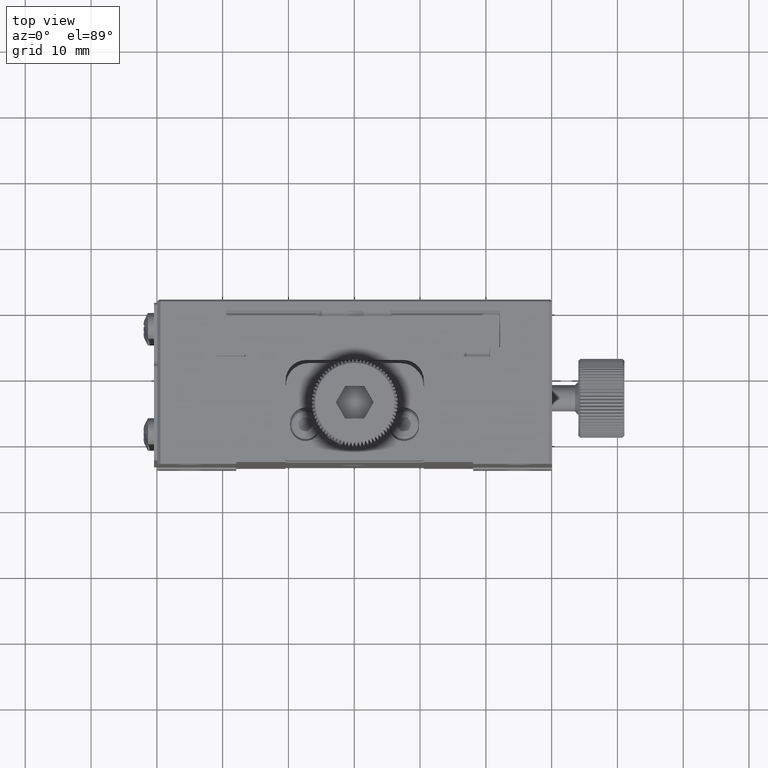
[diagram: clean part render]
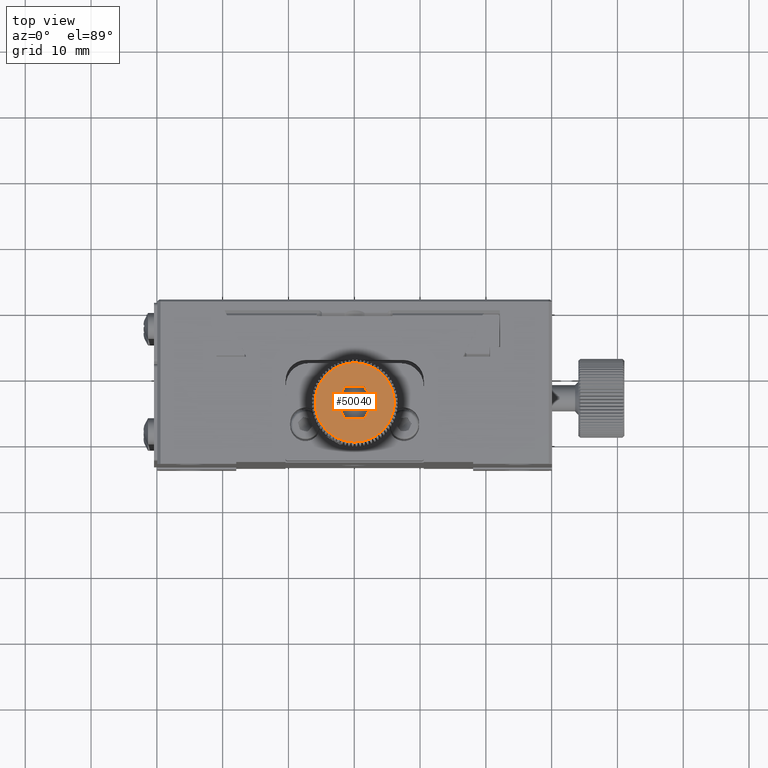
[diagram: same view with one face highlighted and labeled with its STEP entity id]
A machine part, top view. The second image highlights one B-rep face of the part: STEP entity #50040.
In plain terms, the highlighted planar face has unit normal (-0, 0, -1).
Its self-contained STEP definition (entity closure, byte-faithful):
#22 = LINE ( 'NONE', #41900, #59853 ) ;
#212 = DIRECTION ( 'NONE',  ( -1.000000000000000000, 0.000000000000000000, 2.312964634625415683E-15 ) ) ;
#405 = CIRCLE ( 'NONE', #58716, 6.000000000026789237 ) ;
#583 = EDGE_CURVE ( 'NONE', #21485, #43441, #62082, .T. ) ;
#595 = ORIENTED_EDGE ( 'NONE', *, *, #583, .F. ) ;
#676 = EDGE_CURVE ( 'NONE', #65766, #7494, #52471, .T. ) ;
#728 = EDGE_CURVE ( 'NONE', #15925, #60457, #64535, .T. ) ;
#777 = EDGE_CURVE ( 'NONE', #56016, #11095, #37280, .T. ) ;
#859 = DIRECTION ( 'NONE',  ( -0.4999999999999972244, 0.8660254037844402619, 0.000000000000000000 ) ) ;
#1012 = ORIENTED_EDGE ( 'NONE', *, *, #29845, .F. ) ;
#1018 = EDGE_CURVE ( 'NONE', #12704, #76382, #62144, .T. ) ;
#1096 = CARTESIAN_POINT ( 'NONE',  ( 51.12949306994651266, 39.43299562105167411, 100.1790466770447381 ) ) ;
#1148 = EDGE_CURVE ( 'NONE', #11564, #56016, #26193, .T. ) ;
#1254 = CARTESIAN_POINT ( 'NONE',  ( 47.17140035520171182, 45.33657315266978571, 100.1790466770445249 ) ) ;
#1296 = ORIENTED_EDGE ( 'NONE', *, *, #20802, .F. ) ;
#1468 = DIRECTION ( 'NONE',  ( -1.000000000000000000, 0.000000000000000000, 2.312964634625415683E-15 ) ) ;
#1525 = CIRCLE ( 'NONE', #73395, 6.000000000026789237 ) ;
#1552 = CIRCLE ( 'NONE', #46184, 6.000000000026789237 ) ;
#1796 = EDGE_CURVE ( 'NONE', #31157, #61107, #59602, .T. ) ;
#1817 = CARTESIAN_POINT ( 'NONE',  ( 50.05815170114983914, 45.33657315266978571, 100.1790466769989933 ) ) ;
#2007 = EDGE_CURVE ( 'NONE', #43064, #50114, #36058, .T. ) ;
#2014 = CARTESIAN_POINT ( 'NONE',  ( 45.72138251816615195, 41.19019725873006621, 100.1790466770447665 ) ) ;
#2046 = ORIENTED_EDGE ( 'NONE', *, *, #27440, .F. ) ;
#2068 = DIRECTION ( 'NONE',  ( -3.307264944117246031E-15, 6.767819170658269070E-16, -1.000000000000000000 ) ) ;
#2212 = DIRECTION ( 'NONE',  ( -1.000000000000000000, 0.000000000000000000, 4.848925578529680511E-15 ) ) ;
#2990 = EDGE_CURVE ( 'NONE', #68426, #7824, #60926, .T. ) ;
#3067 = ORIENTED_EDGE ( 'NONE', *, *, #1018, .F. ) ;
#3118 = CARTESIAN_POINT ( 'NONE',  ( 46.11051934549399789, 40.81814435662793272, 100.1790466770447665 ) ) ;
#3187 = AXIS2_PLACEMENT_3D ( 'NONE', #18080, #35909, #35544 ) ;
#3247 = CIRCLE ( 'NONE', #59010, 6.000000000026789237 ) ;
#3291 = CARTESIAN_POINT ( 'NONE',  ( 45.05071217879967094, 48.64195504139713222, 100.1790466770447665 ) ) ;
#3477 = DIRECTION ( 'NONE',  ( -3.307264944117246031E-15, 6.767819170658269070E-16, -1.000000000000000000 ) ) ;
#3480 = CARTESIAN_POINT ( 'NONE',  ( 50.05815170114983914, 45.33657315266978571, 100.1790466769989933 ) ) ;
#3719 = DIRECTION ( 'NONE',  ( 0.5000000000000047740, 0.8660254037844359321, 0.000000000000000000 ) ) ;
#3742 = VECTOR ( 'NONE', #2212, 1000.000000000000000 ) ;
#3940 = AXIS2_PLACEMENT_3D ( 'NONE', #51632, #22130, #45795 ) ;
#3992 = CARTESIAN_POINT ( 'NONE',  ( 55.06559122349997182, 48.64195504139722459, 100.1790466770447097 ) ) ;
#4106 = AXIS2_PLACEMENT_3D ( 'NONE', #19170, #18779, #13347 ) ;
#4222 = AXIS2_PLACEMENT_3D ( 'NONE', #36054, #7316, #65528 ) ;
#4228 = AXIS2_PLACEMENT_3D ( 'NONE', #9207, #73592, #32865 ) ;
#4465 = VERTEX_POINT ( 'NONE', #13911 ) ;
#4515 = CARTESIAN_POINT ( 'NONE',  ( 46.98075603670066869, 50.48726591430398969, 100.1790466770447523 ) ) ;
#4674 = DIRECTION ( 'NONE',  ( -3.307264944117246031E-15, 6.767819170658269070E-16, -1.000000000000000000 ) ) ;
#4966 = DIRECTION ( 'NONE',  ( -1.000000000000000000, 0.000000000000000000, 2.312964634625415683E-15 ) ) ;
#5062 = VERTEX_POINT ( 'NONE', #22465 ) ;
#5194 = AXIS2_PLACEMENT_3D ( 'NONE', #57962, #40873, #29228 ) ;
#5296 = DIRECTION ( 'NONE',  ( -1.000000000000000000, 0.000000000000000000, 2.312964634625415683E-15 ) ) ;
#5320 = VERTEX_POINT ( 'NONE', #64271 ) ;
#5430 = VERTEX_POINT ( 'NONE', #18105 ) ;
#5526 = CARTESIAN_POINT ( 'NONE',  ( 50.05815170114983914, 45.33657315266978571, 100.1790466769989933 ) ) ;
#5999 = CARTESIAN_POINT ( 'NONE',  ( 50.05815170114983914, 45.33657315266978571, 100.1790466769989933 ) ) ;
#6015 = CARTESIAN_POINT ( 'NONE',  ( 50.05815170114983914, 45.33657315266978571, 100.1790466769989933 ) ) ;
#6033 = CARTESIAN_POINT ( 'NONE',  ( 50.05815170114983914, 45.33657315266978571, 100.1790466769989933 ) ) ;
#6057 = DIRECTION ( 'NONE',  ( -3.307264944117246031E-15, 6.767819170658269070E-16, -1.000000000000000000 ) ) ;
#6165 = ORIENTED_EDGE ( 'NONE', *, *, #56261, .F. ) ;
#6287 = ORIENTED_EDGE ( 'NONE', *, *, #72998, .F. ) ;
#6309 = AXIS2_PLACEMENT_3D ( 'NONE', #39020, #20034, #32037 ) ;
#6446 = DIRECTION ( 'NONE',  ( -1.000000000000000000, 0.000000000000000000, 2.312964634625415683E-15 ) ) ;
#6472 = VERTEX_POINT ( 'NONE', #34803 ) ;
#6474 = CARTESIAN_POINT ( 'NONE',  ( 50.05815170114983914, 45.33657315266978571, 100.1790466769989933 ) ) ;
#6499 = ORIENTED_EDGE ( 'NONE', *, *, #73320, .F. ) ;
#6547 = CIRCLE ( 'NONE', #56064, 6.000000000026789237 ) ;
#6573 = CARTESIAN_POINT ( 'NONE',  ( 48.46193062774272420, 39.55279598846884426, 100.1790466770447523 ) ) ;
#6614 = CARTESIAN_POINT ( 'NONE',  ( 54.74914059597891480, 49.07751196383895831, 100.1790466770447097 ) ) ;
#7096 = CIRCLE ( 'NONE', #50477, 6.000000000026789237 ) ;
#7241 = CIRCLE ( 'NONE', #50627, 6.000000000026789237 ) ;
#7253 = DIRECTION ( 'NONE',  ( -1.000000000000000000, 0.000000000000000000, 2.312964634625415683E-15 ) ) ;
#7264 = DIRECTION ( 'NONE',  ( -1.000000000000000000, 0.000000000000000000, 2.312964634625415683E-15 ) ) ;
#7316 = DIRECTION ( 'NONE',  ( -3.307264944117246031E-15, 6.767819170658269070E-16, -1.000000000000000000 ) ) ;
#7494 = VERTEX_POINT ( 'NONE', #45403 ) ;
#7759 = DIRECTION ( 'NONE',  ( -3.307264944117246031E-15, 6.767819170658269070E-16, -1.000000000000000000 ) ) ;
#7818 = DIRECTION ( 'NONE',  ( -1.000000000000000000, 0.000000000000000000, 2.312964634625415683E-15 ) ) ;
#7824 = VERTEX_POINT ( 'NONE', #50740 ) ;
#8013 = ORIENTED_EDGE ( 'NONE', *, *, #8128, .F. ) ;
#8042 = LINE ( 'NONE', #31686, #3742 ) ;
#8088 = DIRECTION ( 'NONE',  ( -1.000000000000000000, 0.000000000000000000, 2.312964634625415683E-15 ) ) ;
#8128 = EDGE_CURVE ( 'NONE', #38372, #30064, #73991, .T. ) ;
#8451 = DIRECTION ( 'NONE',  ( -1.000000000000000000, 0.000000000000000000, 2.312964634625415683E-15 ) ) ;
#8648 = VERTEX_POINT ( 'NONE', #76451 ) ;
#8970 = CARTESIAN_POINT ( 'NONE',  ( 50.05815170114983914, 45.33657315266978571, 100.1790466769989933 ) ) ;
#8991 = CIRCLE ( 'NONE', #23814, 6.000000000026789237 ) ;
#9174 = DIRECTION ( 'NONE',  ( -1.000000000000000000, 0.000000000000000000, 2.312964634625415683E-15 ) ) ;
#9207 = CARTESIAN_POINT ( 'NONE',  ( 50.05815170114983914, 45.33657315266978571, 100.1790466769989933 ) ) ;
#9380 = DIRECTION ( 'NONE',  ( -1.000000000000000000, 0.000000000000000000, 2.312964634625415683E-15 ) ) ;
#9421 = VECTOR ( 'NONE', #49682, 1000.000000000000114 ) ;
#9615 = AXIS2_PLACEMENT_3D ( 'NONE', #35937, #6057, #58455 ) ;
#9645 = VERTEX_POINT ( 'NONE', #48933 ) ;
#9791 = EDGE_CURVE ( 'NONE', #11095, #38957, #7096, .T. ) ;
#9870 = VERTEX_POINT ( 'NONE', #20106 ) ;
#10054 = DIRECTION ( 'NONE',  ( -1.000000000000000000, 0.000000000000000000, 2.312964634625415683E-15 ) ) ;
#10056 = CARTESIAN_POINT ( 'NONE',  ( 45.36716280632072085, 49.07751196383888015, 100.1790466770447665 ) ) ;
#10063 = DIRECTION ( 'NONE',  ( -1.000000000000000000, 0.000000000000000000, 2.312964634625415683E-15 ) ) ;
#10093 = CIRCLE ( 'NONE', #29903, 6.000000000026789237 ) ;
#10478 = ORIENTED_EDGE ( 'NONE', *, *, #9791, .F. ) ;
#10501 = ORIENTED_EDGE ( 'NONE', *, *, #17215, .F. ) ;
#10624 = DIRECTION ( 'NONE',  ( -3.307264944117246031E-15, 6.767819170658269070E-16, -1.000000000000000000 ) ) ;
#10770 = EDGE_CURVE ( 'NONE', #64956, #43064, #70397, .T. ) ;
#10884 = DIRECTION ( 'NONE',  ( -3.307264944117246031E-15, 6.767819170658269070E-16, -1.000000000000000000 ) ) ;
#11095 = VERTEX_POINT ( 'NONE', #16574 ) ;
#11349 = AXIS2_PLACEMENT_3D ( 'NONE', #12422, #29878, #40749 ) ;
#11481 = AXIS2_PLACEMENT_3D ( 'NONE', #68576, #14667, #8088 ) ;
#11564 = VERTEX_POINT ( 'NONE', #25239 ) ;
#11566 = CARTESIAN_POINT ( 'NONE',  ( 50.05815170114983914, 45.33657315266978571, 100.1790466769989933 ) ) ;
#11684 = AXIS2_PLACEMENT_3D ( 'NONE', #29891, #7759, #31414 ) ;
#11875 = DIRECTION ( 'NONE',  ( -1.000000000000000000, 0.000000000000000000, 2.312964634625415683E-15 ) ) ;
#11967 = ORIENTED_EDGE ( 'NONE', *, *, #72505, .F. ) ;
#12216 = ORIENTED_EDGE ( 'NONE', *, *, #46861, .F. ) ;
#12275 = DIRECTION ( 'NONE',  ( -3.307264944117246031E-15, 6.767819170658269070E-16, -1.000000000000000000 ) ) ;
#12422 = CARTESIAN_POINT ( 'NONE',  ( 50.05815170114983914, 45.33657315266978571, 100.1790466769989933 ) ) ;
#12516 = VECTOR ( 'NONE', #859, 1000.000000000000114 ) ;
#12592 = DIRECTION ( 'NONE',  ( -1.000000000000000000, 0.000000000000000000, 2.312964634625415683E-15 ) ) ;
#12704 = VERTEX_POINT ( 'NONE', #75801 ) ;
#12705 = CARTESIAN_POINT ( 'NONE',  ( 44.35181260335345144, 47.19067511892772870, 100.1790466770447807 ) ) ;
#12887 = CARTESIAN_POINT ( 'NONE',  ( 50.05815170114983914, 45.33657315266978571, 100.1790466769989933 ) ) ;
#13015 = VERTEX_POINT ( 'NONE', #56360 ) ;
#13347 = DIRECTION ( 'NONE',  ( -1.000000000000000000, 0.000000000000000000, 2.312964634625415683E-15 ) ) ;
#13429 = CIRCLE ( 'NONE', #66699, 6.000000000026789237 ) ;
#13911 = CARTESIAN_POINT ( 'NONE',  ( 56.00385027178401032, 44.53117355776034003, 100.1790466770446955 ) ) ;
#14177 = VERTEX_POINT ( 'NONE', #71910 ) ;
#14405 = ORIENTED_EDGE ( 'NONE', *, *, #75103, .F. ) ;
#14441 = DIRECTION ( 'NONE',  ( -3.307264944117246031E-15, 6.767819170658269070E-16, -1.000000000000000000 ) ) ;
#14667 = DIRECTION ( 'NONE',  ( -3.307264944117246031E-15, 6.767819170658269070E-16, -1.000000000000000000 ) ) ;
#14679 = ORIENTED_EDGE ( 'NONE', *, *, #68816, .F. ) ;
#14784 = CARTESIAN_POINT ( 'NONE',  ( 53.58486321492036097, 50.19067511894118638, 100.1790466770447097 ) ) ;
#14790 = ORIENTED_EDGE ( 'NONE', *, *, #61432, .F. ) ;
#14811 = CARTESIAN_POINT ( 'NONE',  ( 54.00578405680578697, 40.81814435662798957, 100.1790466770447097 ) ) ;
#14936 = DIRECTION ( 'NONE',  ( -1.000000000000000000, 0.000000000000000000, 2.312964634625415683E-15 ) ) ;
#14987 = DIRECTION ( 'NONE',  ( -3.307264944117246031E-15, 6.767819170658269070E-16, -1.000000000000000000 ) ) ;
#14999 = CARTESIAN_POINT ( 'NONE',  ( 47.17140035520171182, 45.33657315266979992, 100.1790466770445107 ) ) ;
#15155 = ORIENTED_EDGE ( 'NONE', *, *, #23769, .F. ) ;
#15187 = CIRCLE ( 'NONE', #69672, 6.000000000026789237 ) ;
#15296 = CARTESIAN_POINT ( 'NONE',  ( 50.05815170114983914, 45.33657315266978571, 100.1790466769989933 ) ) ;
#15405 = CIRCLE ( 'NONE', #30282, 6.000000000026789237 ) ;
#15684 = VERTEX_POINT ( 'NONE', #75240 ) ;
#15700 = AXIS2_PLACEMENT_3D ( 'NONE', #50583, #40067, #39314 ) ;
#15726 = VERTEX_POINT ( 'NONE', #3118 ) ;
#15764 = CARTESIAN_POINT ( 'NONE',  ( 56.00385027178398190, 46.14197274757938771, 100.1790466770447097 ) ) ;
#15777 = DIRECTION ( 'NONE',  ( 0.4999999999999990563, -0.8660254037844391517, 0.000000000000000000 ) ) ;
#15925 = VERTEX_POINT ( 'NONE', #37171 ) ;
#16145 = AXIS2_PLACEMENT_3D ( 'NONE', #32355, #56026, #55272 ) ;
#16164 = CARTESIAN_POINT ( 'NONE',  ( 53.13554736559907354, 40.18588039103561727, 100.1790466770447239 ) ) ;
#16574 = CARTESIAN_POINT ( 'NONE',  ( 44.06419330187521410, 45.06738417056547519, 100.1790466770447665 ) ) ;
#16697 = VERTEX_POINT ( 'NONE', #61351 ) ;
#17045 = CARTESIAN_POINT ( 'NONE',  ( 50.05815170114983914, 45.33657315266978571, 100.1790466769989933 ) ) ;
#17181 = EDGE_CURVE ( 'NONE', #76512, #26544, #44061, .T. ) ;
#17193 = DIRECTION ( 'NONE',  ( -1.000000000000000000, 0.000000000000000000, 2.312964634625415683E-15 ) ) ;
#17215 = EDGE_CURVE ( 'NONE', #26973, #13015, #63901, .T. ) ;
#17584 = DIRECTION ( 'NONE',  ( -3.307264944117246031E-15, 6.767819170658269070E-16, -1.000000000000000000 ) ) ;
#17595 = AXIS2_PLACEMENT_3D ( 'NONE', #70922, #48039, #66258 ) ;
#17714 = DIRECTION ( 'NONE',  ( -3.307264944117246031E-15, 6.767819170658269070E-16, -1.000000000000000000 ) ) ;
#17830 = EDGE_CURVE ( 'NONE', #38957, #32340, #3247, .T. ) ;
#18080 = CARTESIAN_POINT ( 'NONE',  ( 50.05815170114983914, 45.33657315266978571, 100.1790466769989933 ) ) ;
#18105 = CARTESIAN_POINT ( 'NONE',  ( 55.57531833648320685, 42.97842296273578455, 100.1790466770446955 ) ) ;
#18139 = AXIS2_PLACEMENT_3D ( 'NONE', #15296, #10624, #51373 ) ;
#18445 = CARTESIAN_POINT ( 'NONE',  ( 50.05815170114983914, 45.33657315266978571, 100.1790466769989933 ) ) ;
#18477 = CIRCLE ( 'NONE', #46993, 6.000000000026789237 ) ;
#18569 = AXIS2_PLACEMENT_3D ( 'NONE', #66326, #53545, #35331 ) ;
#18695 = CARTESIAN_POINT ( 'NONE',  ( 52.94490304709796646, 45.33657315266977861, 100.1790466770444823 ) ) ;
#18779 = DIRECTION ( 'NONE',  ( -3.307264944117246031E-15, 6.767819170658269070E-16, -1.000000000000000000 ) ) ;
#18859 = EDGE_CURVE ( 'NONE', #60457, #71287, #7241, .T. ) ;
#18878 = CIRCLE ( 'NONE', #5194, 6.000000000026789237 ) ;
#18934 = VERTEX_POINT ( 'NONE', #72267 ) ;
#18987 = AXIS2_PLACEMENT_3D ( 'NONE', #11566, #76320, #4966 ) ;
#19166 = CIRCLE ( 'NONE', #32780, 6.000000000026789237 ) ;
#19170 = CARTESIAN_POINT ( 'NONE',  ( 50.05815170114983914, 45.33657315266978571, 100.1790466769989933 ) ) ;
#19234 = CARTESIAN_POINT ( 'NONE',  ( 46.11051934549393394, 49.85500194871162449, 100.1790466770447523 ) ) ;
#19499 = CARTESIAN_POINT ( 'NONE',  ( 50.05815170114983914, 45.33657315266978571, 100.1790466769989933 ) ) ;
#19752 = VERTEX_POINT ( 'NONE', #22359 ) ;
#20034 = DIRECTION ( 'NONE',  ( -3.307264944117246031E-15, 6.767819170658269070E-16, -1.000000000000000000 ) ) ;
#20106 = CARTESIAN_POINT ( 'NONE',  ( 55.06559122350005708, 42.03119126394247473, 100.1790466770446955 ) ) ;
#20113 = CIRCLE ( 'NONE', #22542, 6.000000000026789237 ) ;
#20180 = LINE ( 'NONE', #32188, #9421 ) ;
#20535 = ORIENTED_EDGE ( 'NONE', *, *, #28898, .F. ) ;
#20546 = DIRECTION ( 'NONE',  ( -3.307264944117246031E-15, 6.767819170658269070E-16, -1.000000000000000000 ) ) ;
#20802 = EDGE_CURVE ( 'NONE', #22639, #76512, #70656, .T. ) ;
#20946 = AXIS2_PLACEMENT_3D ( 'NONE', #5526, #52868, #7818 ) ;
#21251 = ORIENTED_EDGE ( 'NONE', *, *, #33473, .F. ) ;
#21296 = AXIS2_PLACEMENT_3D ( 'NONE', #8970, #45797, #45040 ) ;
#21301 = ORIENTED_EDGE ( 'NONE', *, *, #74473, .F. ) ;
#21388 = DIRECTION ( 'NONE',  ( -3.307264944117246031E-15, 6.767819170658269070E-16, -1.000000000000000000 ) ) ;
#21392 = CARTESIAN_POINT ( 'NONE',  ( 44.77457850998582956, 48.17978512752044651, 100.1790466770447665 ) ) ;
#21479 = CARTESIAN_POINT ( 'NONE',  ( 55.90771917426688020, 46.67169875641371135, 100.1790466770446955 ) ) ;
#21485 = VERTEX_POINT ( 'NONE', #54716 ) ;
#21785 = CARTESIAN_POINT ( 'NONE',  ( 55.57531833648313579, 47.69472334260393609, 100.1790466770447097 ) ) ;
#22130 = DIRECTION ( 'NONE',  ( -3.307264944117246031E-15, 6.767819170658269070E-16, -1.000000000000000000 ) ) ;
#22352 = DIRECTION ( 'NONE',  ( -3.307264944117246031E-15, 6.767819170658269070E-16, -1.000000000000000000 ) ) ;
#22359 = CARTESIAN_POINT ( 'NONE',  ( 47.45484926643286627, 50.74238636010843351, 100.1790466770447523 ) ) ;
#22465 = CARTESIAN_POINT ( 'NONE',  ( 54.74914059597901428, 41.59563434150074812, 100.1790466770447097 ) ) ;
#22468 = DIRECTION ( 'NONE',  ( -3.307264944117246031E-15, 6.767819170658269070E-16, -1.000000000000000000 ) ) ;
#22519 = CARTESIAN_POINT ( 'NONE',  ( 50.05815170114983914, 45.33657315266978571, 100.1790466769989933 ) ) ;
#22542 = AXIS2_PLACEMENT_3D ( 'NONE', #38266, #14987, #9174 ) ;
#22575 = EDGE_CURVE ( 'NONE', #71287, #40898, #31033, .T. ) ;
#22639 = VERTEX_POINT ( 'NONE', #28456 ) ;
#22805 = VERTEX_POINT ( 'NONE', #42396 ) ;
#22818 = DIRECTION ( 'NONE',  ( -3.307264944117246031E-15, 6.767819170658269070E-16, -1.000000000000000000 ) ) ;
#22830 = ORIENTED_EDGE ( 'NONE', *, *, #24830, .F. ) ;
#22942 = EDGE_LOOP ( 'NONE', ( #15155, #37902, #58815, #6499, #21251, #52216, #6287, #65415, #59659, #40368, #56156, #35839, #2046, #63088, #29399, #24664, #58405, #32116, #10478, #44854, #38188, #25142, #35626, #66784, #76744, #30255, #11967, #53267, #67495, #34823, #68291, #50584, #45017, #1296, #22830, #3067, #21301, #10501, #66232, #31526, #60361, #24823, #62812, #6165, #595, #48868, #24479, #20535, #54174, #40452, #42155, #33887, #34428, #8013, #72847, #14679, #31229, #34453, #1012, #24855, #35982, #72324, #14405, #60896, #56657, #47728, #44101, #65331, #50779, #49741 ) ) ;
#23230 = DIRECTION ( 'NONE',  ( -1.000000000000000000, 0.000000000000000000, 2.312964634625415683E-15 ) ) ;
#23769 = EDGE_CURVE ( 'NONE', #7824, #69441, #73001, .T. ) ;
#23814 = AXIS2_PLACEMENT_3D ( 'NONE', #54526, #12275, #6446 ) ;
#23870 = DIRECTION ( 'NONE',  ( -3.307264944117246031E-15, 6.767819170658269070E-16, -1.000000000000000000 ) ) ;
#24304 = VERTEX_POINT ( 'NONE', #39635 ) ;
#24345 = CIRCLE ( 'NONE', #52827, 6.000000000026789237 ) ;
#24479 = ORIENTED_EDGE ( 'NONE', *, *, #54065, .F. ) ;
#24664 = ORIENTED_EDGE ( 'NONE', *, *, #69789, .F. ) ;
#24696 = CIRCLE ( 'NONE', #38493, 6.000000000026789237 ) ;
#24783 = AXIS2_PLACEMENT_3D ( 'NONE', #58450, #17714, #5296 ) ;
#24809 = CIRCLE ( 'NONE', #34743, 6.000000000026789237 ) ;
#24816 = CARTESIAN_POINT ( 'NONE',  ( 44.06419330187520700, 45.60576213477405361, 100.1790466770447665 ) ) ;
#24823 = ORIENTED_EDGE ( 'NONE', *, *, #18859, .F. ) ;
#24830 = EDGE_CURVE ( 'NONE', #76382, #22639, #29738, .T. ) ;
#24855 = ORIENTED_EDGE ( 'NONE', *, *, #38440, .F. ) ;
#24992 = DIRECTION ( 'NONE',  ( -3.307264944117246031E-15, 6.767819170658269070E-16, -1.000000000000000000 ) ) ;
#25074 = VERTEX_POINT ( 'NONE', #10056 ) ;
#25092 = CIRCLE ( 'NONE', #11481, 6.000000000026789237 ) ;
#25142 = ORIENTED_EDGE ( 'NONE', *, *, #37819, .F. ) ;
#25179 = DIRECTION ( 'NONE',  ( -3.307264944117246031E-15, 6.767819170658269070E-16, -1.000000000000000000 ) ) ;
#25239 = CARTESIAN_POINT ( 'NONE',  ( 44.20858422803281229, 44.00144754892590981, 100.1790466770447665 ) ) ;
#25427 = CARTESIAN_POINT ( 'NONE',  ( 50.05815170114983914, 45.33657315266978571, 100.1790466769989933 ) ) ;
#25463 = DIRECTION ( 'NONE',  ( -3.307264944117246031E-15, 6.767819170658269070E-16, -1.000000000000000000 ) ) ;
#25479 = CARTESIAN_POINT ( 'NONE',  ( 50.05815170114983914, 45.33657315266978571, 100.1790466769989933 ) ) ;
#25545 = CIRCLE ( 'NONE', #18139, 6.000000000026789237 ) ;
#25691 = DIRECTION ( 'NONE',  ( -3.307264944117246031E-15, 6.767819170658269070E-16, -1.000000000000000000 ) ) ;
#25793 = DIRECTION ( 'NONE',  ( -1.000000000000000000, 0.000000000000000000, 2.312964634625415683E-15 ) ) ;
#25875 = CARTESIAN_POINT ( 'NONE',  ( 50.05815170114983914, 45.33657315266978571, 100.1790466769989933 ) ) ;
#25914 = VERTEX_POINT ( 'NONE', #31981 ) ;
#25984 = CARTESIAN_POINT ( 'NONE',  ( 48.46193062774266025, 51.12035031687072717, 100.1790466770447381 ) ) ;
#26059 = CARTESIAN_POINT ( 'NONE',  ( 50.05815170114983914, 45.33657315266978571, 100.1790466769989933 ) ) ;
#26193 = CIRCLE ( 'NONE', #69563, 6.000000000026789237 ) ;
#26363 = DIRECTION ( 'NONE',  ( -3.307264944117246031E-15, 6.767819170658269070E-16, -1.000000000000000000 ) ) ;
#26434 = DIRECTION ( 'NONE',  ( -1.000000000000000000, 0.000000000000000000, 2.312964634625415683E-15 ) ) ;
#26544 = VERTEX_POINT ( 'NONE', #71407 ) ;
#26618 = DIRECTION ( 'NONE',  ( -3.307264944117246031E-15, 6.767819170658269070E-16, -1.000000000000000000 ) ) ;
#26973 = VERTEX_POINT ( 'NONE', #1096 ) ;
#27129 = DIRECTION ( 'NONE',  ( -3.307264944117246031E-15, 6.767819170658269070E-16, -1.000000000000000000 ) ) ;
#27139 = CARTESIAN_POINT ( 'NONE',  ( 56.05211010042449971, 45.06738417056556045, 100.1790466770446955 ) ) ;
#27440 = EDGE_CURVE ( 'NONE', #50457, #29709, #25092, .T. ) ;
#27467 = AXIS2_PLACEMENT_3D ( 'NONE', #25479, #48772, #54561 ) ;
#27791 = EDGE_CURVE ( 'NONE', #50263, #39958, #8991, .T. ) ;
#27874 = CIRCLE ( 'NONE', #76135, 6.000000000026789237 ) ;
#28090 = DIRECTION ( 'NONE',  ( -3.307264944117246031E-15, 6.767819170658269070E-16, -1.000000000000000000 ) ) ;
#28456 = CARTESIAN_POINT ( 'NONE',  ( 48.98681033235329352, 39.43299562105165279, 100.1790466770447381 ) ) ;
#28463 = DIRECTION ( 'NONE',  ( -1.000000000000000000, 0.000000000000000000, 2.312964634625415683E-15 ) ) ;
#28512 = CARTESIAN_POINT ( 'NONE',  ( 51.50152737412388859, 42.83657315266979282, 100.1790466770444823 ) ) ;
#28748 = DIRECTION ( 'NONE',  ( -3.307264944117246031E-15, 6.767819170658269070E-16, -1.000000000000000000 ) ) ;
#28898 = EDGE_CURVE ( 'NONE', #54421, #9870, #405, .T. ) ;
#29015 = CARTESIAN_POINT ( 'NONE',  ( 50.05815170114983914, 45.33657315266978571, 100.1790466769989933 ) ) ;
#29171 = DIRECTION ( 'NONE',  ( -1.000000000000000000, 0.000000000000000000, 2.312964634625415683E-15 ) ) ;
#29194 = DIRECTION ( 'NONE',  ( -3.307264944117246031E-15, 6.767819170658269070E-16, -1.000000000000000000 ) ) ;
#29228 = DIRECTION ( 'NONE',  ( -1.000000000000000000, 0.000000000000000000, 2.312964634625415683E-15 ) ) ;
#29315 = EDGE_CURVE ( 'NONE', #19752, #25914, #37674, .T. ) ;
#29399 = ORIENTED_EDGE ( 'NONE', *, *, #46058, .F. ) ;
#29709 = VERTEX_POINT ( 'NONE', #3291 ) ;
#29738 = CIRCLE ( 'NONE', #16145, 6.000000000026789237 ) ;
#29822 = DIRECTION ( 'NONE',  ( -3.307264944117246031E-15, 6.767819170658269070E-16, -1.000000000000000000 ) ) ;
#29828 = ORIENTED_EDGE ( 'NONE', *, *, #676, .F. ) ;
#29845 = EDGE_CURVE ( 'NONE', #49703, #64956, #19166, .T. ) ;
#29878 = DIRECTION ( 'NONE',  ( -3.307264944117246031E-15, 6.767819170658269070E-16, -1.000000000000000000 ) ) ;
#29891 = CARTESIAN_POINT ( 'NONE',  ( 50.05815170114983914, 45.33657315266978571, 100.1790466769989933 ) ) ;
#29903 = AXIS2_PLACEMENT_3D ( 'NONE', #73678, #20546, #68245 ) ;
#30007 = EDGE_CURVE ( 'NONE', #4465, #6472, #73697, .T. ) ;
#30064 = VERTEX_POINT ( 'NONE', #27139 ) ;
#30255 = ORIENTED_EDGE ( 'NONE', *, *, #60998, .F. ) ;
#30282 = AXIS2_PLACEMENT_3D ( 'NONE', #49634, #25179, #43405 ) ;
#30541 = DIRECTION ( 'NONE',  ( -3.307264944117246031E-15, 6.767819170658269070E-16, -1.000000000000000000 ) ) ;
#30949 = CIRCLE ( 'NONE', #18569, 6.000000000026789237 ) ;
#31033 = CIRCLE ( 'NONE', #74394, 6.000000000026789237 ) ;
#31059 = AXIS2_PLACEMENT_3D ( 'NONE', #71811, #53232, #47413 ) ;
#31157 = VERTEX_POINT ( 'NONE', #68751 ) ;
#31227 = DIRECTION ( 'NONE',  ( -1.000000000000000000, 0.000000000000000000, 2.312964634625415683E-15 ) ) ;
#31229 = ORIENTED_EDGE ( 'NONE', *, *, #2007, .F. ) ;
#31342 = EDGE_CURVE ( 'NONE', #8648, #38570, #20180, .T. ) ;
#31414 = DIRECTION ( 'NONE',  ( -1.000000000000000000, 0.000000000000000000, 2.312964634625415683E-15 ) ) ;
#31526 = ORIENTED_EDGE ( 'NONE', *, *, #59514, .F. ) ;
#31557 = CIRCLE ( 'NONE', #42761, 6.000000000026789237 ) ;
#31686 = CARTESIAN_POINT ( 'NONE',  ( 50.05815170114983204, 47.83657315266977861, 100.1790466770444965 ) ) ;
#31790 = CIRCLE ( 'NONE', #56605, 6.000000000026789237 ) ;
#31981 = CARTESIAN_POINT ( 'NONE',  ( 47.94990275665238499, 50.95398237653327556, 100.1790466770447523 ) ) ;
#32037 = DIRECTION ( 'NONE',  ( -1.000000000000000000, 0.000000000000000000, 2.312964634625415683E-15 ) ) ;
#32116 = ORIENTED_EDGE ( 'NONE', *, *, #17830, .F. ) ;
#32188 = CARTESIAN_POINT ( 'NONE',  ( 48.61477602817578969, 47.83657315266979282, 100.1790466770445107 ) ) ;
#32232 = CARTESIAN_POINT ( 'NONE',  ( 49.52031584772689854, 39.36072738867166976, 100.1790466770447523 ) ) ;
#32340 = VERTEX_POINT ( 'NONE', #62655 ) ;
#32355 = CARTESIAN_POINT ( 'NONE',  ( 50.05815170114983914, 45.33657315266978571, 100.1790466769989933 ) ) ;
#32389 = AXIS2_PLACEMENT_3D ( 'NONE', #70715, #17584, #52888 ) ;
#32608 = VERTEX_POINT ( 'NONE', #33725 ) ;
#32780 = AXIS2_PLACEMENT_3D ( 'NONE', #66357, #54315, #53955 ) ;
#32865 = DIRECTION ( 'NONE',  ( -1.000000000000000000, 0.000000000000000000, 2.312964634625415683E-15 ) ) ;
#32956 = CARTESIAN_POINT ( 'NONE',  ( 50.05815170114983914, 45.33657315266978571, 100.1790466769989933 ) ) ;
#33409 = CIRCLE ( 'NONE', #61877, 6.000000000026789237 ) ;
#33473 = EDGE_CURVE ( 'NONE', #25914, #40245, #24345, .T. ) ;
#33664 = VERTEX_POINT ( 'NONE', #36507 ) ;
#33725 = CARTESIAN_POINT ( 'NONE',  ( 44.54098506581650696, 47.69472334260385082, 100.1790466770447665 ) ) ;
#33887 = ORIENTED_EDGE ( 'NONE', *, *, #30007, .F. ) ;
#34428 = ORIENTED_EDGE ( 'NONE', *, *, #68914, .F. ) ;
#34453 = ORIENTED_EDGE ( 'NONE', *, *, #10770, .F. ) ;
#34540 = AXIS2_PLACEMENT_3D ( 'NONE', #61454, #43984, #43596 ) ;
#34743 = AXIS2_PLACEMENT_3D ( 'NONE', #6474, #42555, #65450 ) ;
#34803 = CARTESIAN_POINT ( 'NONE',  ( 55.90771917426690862, 44.00144754892601640, 100.1790466770447097 ) ) ;
#34812 = CIRCLE ( 'NONE', #71942, 6.000000000026789237 ) ;
#34823 = ORIENTED_EDGE ( 'NONE', *, *, #69103, .F. ) ;
#35065 = CIRCLE ( 'NONE', #66007, 6.000000000026789237 ) ;
#35166 = AXIS2_PLACEMENT_3D ( 'NONE', #26059, #25691, #48995 ) ;
#35331 = DIRECTION ( 'NONE',  ( -1.000000000000000000, 0.000000000000000000, 2.312964634625415683E-15 ) ) ;
#35524 = CARTESIAN_POINT ( 'NONE',  ( 50.05815170114983914, 45.33657315266978571, 100.1790466769989933 ) ) ;
#35544 = DIRECTION ( 'NONE',  ( -1.000000000000000000, 0.000000000000000000, 2.312964634625415683E-15 ) ) ;
#35626 = ORIENTED_EDGE ( 'NONE', *, *, #71601, .F. ) ;
#35839 = ORIENTED_EDGE ( 'NONE', *, *, #35954, .F. ) ;
#35909 = DIRECTION ( 'NONE',  ( -3.307264944117246031E-15, 6.767819170658269070E-16, -1.000000000000000000 ) ) ;
#35937 = CARTESIAN_POINT ( 'NONE',  ( 50.05815170114983914, 45.33657315266978571, 100.1790466769989933 ) ) ;
#35954 = EDGE_CURVE ( 'NONE', #29709, #25074, #59976, .T. ) ;
#35982 = ORIENTED_EDGE ( 'NONE', *, *, #43170, .F. ) ;
#36054 = CARTESIAN_POINT ( 'NONE',  ( 50.05815170114983914, 45.33657315266978571, 100.1790466769989933 ) ) ;
#36058 = CIRCLE ( 'NONE', #73210, 6.000000000026789237 ) ;
#36092 = EDGE_CURVE ( 'NONE', #5320, #72118, #53824, .T. ) ;
#36507 = CARTESIAN_POINT ( 'NONE',  ( 46.53144018737930310, 40.48247118639842057, 100.1790466770447523 ) ) ;
#36684 = CARTESIAN_POINT ( 'NONE',  ( 50.05815170114983914, 45.33657315266978571, 100.1790466769989933 ) ) ;
#36766 = DIRECTION ( 'NONE',  ( -3.307264944117246031E-15, 6.767819170658269070E-16, -1.000000000000000000 ) ) ;
#36925 = DIRECTION ( 'NONE',  ( -1.000000000000000000, 0.000000000000000000, 2.312964634625415683E-15 ) ) ;
#36949 = AXIS2_PLACEMENT_3D ( 'NONE', #17045, #40680, #23230 ) ;
#37171 = CARTESIAN_POINT ( 'NONE',  ( 53.58486321492048177, 40.48247118639848452, 100.1790466770447097 ) ) ;
#37280 = CIRCLE ( 'NONE', #57145, 6.000000000026789237 ) ;
#37567 = CIRCLE ( 'NONE', #4106, 6.000000000026789237 ) ;
#37674 = CIRCLE ( 'NONE', #4228, 6.000000000026789237 ) ;
#37695 = EDGE_CURVE ( 'NONE', #49614, #38372, #66276, .T. ) ;
#37819 = EDGE_CURVE ( 'NONE', #18934, #11564, #63796, .T. ) ;
#37902 = ORIENTED_EDGE ( 'NONE', *, *, #2990, .F. ) ;
#37923 = CARTESIAN_POINT ( 'NONE',  ( 50.05815170114983914, 45.33657315266978571, 100.1790466769989933 ) ) ;
#38188 = ORIENTED_EDGE ( 'NONE', *, *, #1148, .F. ) ;
#38261 = CARTESIAN_POINT ( 'NONE',  ( 50.05815170114983914, 45.33657315266978571, 100.1790466769989933 ) ) ;
#38266 = CARTESIAN_POINT ( 'NONE',  ( 50.05815170114983914, 45.33657315266978571, 100.1790466769989933 ) ) ;
#38372 = VERTEX_POINT ( 'NONE', #69965 ) ;
#38440 = EDGE_CURVE ( 'NONE', #68303, #49703, #55930, .T. ) ;
#38493 = AXIS2_PLACEMENT_3D ( 'NONE', #38261, #26618, #74301 ) ;
#38570 = VERTEX_POINT ( 'NONE', #1254 ) ;
#38810 = CIRCLE ( 'NONE', #40018, 6.000000000026789237 ) ;
#38823 = EDGE_CURVE ( 'NONE', #24304, #5430, #44801, .T. ) ;
#38957 = VERTEX_POINT ( 'NONE', #24816 ) ;
#39020 = CARTESIAN_POINT ( 'NONE',  ( 50.05815170114983914, 45.33657315266978571, 100.1790466769989933 ) ) ;
#39217 = DIRECTION ( 'NONE',  ( -1.000000000000000000, 0.000000000000000000, 2.312964634625415683E-15 ) ) ;
#39314 = DIRECTION ( 'NONE',  ( -1.000000000000000000, 0.000000000000000000, 4.848925578529680511E-15 ) ) ;
#39348 = DIRECTION ( 'NONE',  ( -3.307264944117246031E-15, 6.767819170658269070E-16, -1.000000000000000000 ) ) ;
#39531 = CARTESIAN_POINT ( 'NONE',  ( 50.05815170114983914, 45.33657315266978571, 100.1790466769989933 ) ) ;
#39585 = CARTESIAN_POINT ( 'NONE',  ( 50.05815170114983914, 45.33657315266978571, 100.1790466769989933 ) ) ;
#39635 = CARTESIAN_POINT ( 'NONE',  ( 55.76449079894626237, 43.48247118641189246, 100.1790466770447097 ) ) ;
#39695 = CARTESIAN_POINT ( 'NONE',  ( 44.11245313051569639, 44.53117355776022634, 100.1790466770447807 ) ) ;
#39893 = CIRCLE ( 'NONE', #21296, 6.000000000026789237 ) ;
#39958 = VERTEX_POINT ( 'NONE', #6614 ) ;
#40018 = AXIS2_PLACEMENT_3D ( 'NONE', #40869, #28090, #28463 ) ;
#40050 = VERTEX_POINT ( 'NONE', #65213 ) ;
#40067 = DIRECTION ( 'NONE',  ( -4.848925578529680511E-15, 2.471786900593381611E-16, -1.000000000000000000 ) ) ;
#40244 = AXIS2_PLACEMENT_3D ( 'NONE', #40762, #28748, #59008 ) ;
#40245 = VERTEX_POINT ( 'NONE', #25984 ) ;
#40249 = AXIS2_PLACEMENT_3D ( 'NONE', #55856, #26363, #50053 ) ;
#40368 = ORIENTED_EDGE ( 'NONE', *, *, #56898, .F. ) ;
#40452 = ORIENTED_EDGE ( 'NONE', *, *, #38823, .F. ) ;
#40680 = DIRECTION ( 'NONE',  ( -3.307264944117246031E-15, 6.767819170658269070E-16, -1.000000000000000000 ) ) ;
#40742 = DIRECTION ( 'NONE',  ( -3.307264944117246031E-15, 6.767819170658269070E-16, -1.000000000000000000 ) ) ;
#40749 = DIRECTION ( 'NONE',  ( -1.000000000000000000, 0.000000000000000000, 2.312964634625415683E-15 ) ) ;
#40762 = CARTESIAN_POINT ( 'NONE',  ( 50.05815170114983914, 45.33657315266978571, 100.1790466769989933 ) ) ;
#40811 = AXIS2_PLACEMENT_3D ( 'NONE', #5999, #46761, #63849 ) ;
#40869 = CARTESIAN_POINT ( 'NONE',  ( 50.05815170114983914, 45.33657315266978571, 100.1790466769989933 ) ) ;
#40873 = DIRECTION ( 'NONE',  ( -3.307264944117246031E-15, 6.767819170658269070E-16, -1.000000000000000000 ) ) ;
#40898 = VERTEX_POINT ( 'NONE', #64648 ) ;
#41237 = EDGE_CURVE ( 'NONE', #33664, #15726, #18878, .T. ) ;
#41333 = AXIS2_PLACEMENT_3D ( 'NONE', #39531, #63217, #10063 ) ;
#41498 = EDGE_CURVE ( 'NONE', #42161, #62783, #1552, .T. ) ;
#41707 = CARTESIAN_POINT ( 'NONE',  ( 55.34172489231383452, 48.17978512752053888, 100.1790466770447097 ) ) ;
#41900 = CARTESIAN_POINT ( 'NONE',  ( 50.05815170114983204, 42.83657315266979282, 100.1790466770444965 ) ) ;
#42155 = ORIENTED_EDGE ( 'NONE', *, *, #72878, .F. ) ;
#42161 = VERTEX_POINT ( 'NONE', #19234 ) ;
#42212 = CARTESIAN_POINT ( 'NONE',  ( 50.05815170114983914, 45.33657315266978571, 100.1790466769989933 ) ) ;
#42366 = EDGE_CURVE ( 'NONE', #5062, #21485, #38810, .T. ) ;
#42396 = CARTESIAN_POINT ( 'NONE',  ( 45.05071217879970646, 42.03119126394238236, 100.1790466770447665 ) ) ;
#42551 = CIRCLE ( 'NONE', #41333, 6.000000000026789237 ) ;
#42555 = DIRECTION ( 'NONE',  ( -3.307264944117246031E-15, 6.767819170658269070E-16, -1.000000000000000000 ) ) ;
#42761 = AXIS2_PLACEMENT_3D ( 'NONE', #12887, #53243, #36925 ) ;
#42826 = VERTEX_POINT ( 'NONE', #47631 ) ;
#43064 = VERTEX_POINT ( 'NONE', #61934 ) ;
#43170 = EDGE_CURVE ( 'NONE', #39958, #68303, #31790, .T. ) ;
#43405 = DIRECTION ( 'NONE',  ( -1.000000000000000000, 0.000000000000000000, 2.312964634625415683E-15 ) ) ;
#43441 = VERTEX_POINT ( 'NONE', #14811 ) ;
#43596 = DIRECTION ( 'NONE',  ( -1.000000000000000000, 0.000000000000000000, 2.312964634625415683E-15 ) ) ;
#43984 = DIRECTION ( 'NONE',  ( -3.307264944117246031E-15, 6.767819170658269070E-16, -1.000000000000000000 ) ) ;
#44061 = CIRCLE ( 'NONE', #3187, 6.000000000026789237 ) ;
#44101 = ORIENTED_EDGE ( 'NONE', *, *, #47075, .F. ) ;
#44213 = DIRECTION ( 'NONE',  ( -1.000000000000000000, 0.000000000000000000, 2.312964634625415683E-15 ) ) ;
#44434 = VERTEX_POINT ( 'NONE', #61105 ) ;
#44801 = CIRCLE ( 'NONE', #11349, 6.000000000026789237 ) ;
#44854 = ORIENTED_EDGE ( 'NONE', *, *, #777, .F. ) ;
#45017 = ORIENTED_EDGE ( 'NONE', *, *, #17181, .F. ) ;
#45040 = DIRECTION ( 'NONE',  ( -1.000000000000000000, 0.000000000000000000, 2.312964634625415683E-15 ) ) ;
#45403 = CARTESIAN_POINT ( 'NONE',  ( 51.50152737412390280, 47.83657315266978571, 100.1790466770444965 ) ) ;
#45522 = CARTESIAN_POINT ( 'NONE',  ( 50.59598755457275843, 51.31241891666790877, 100.1790466770447381 ) ) ;
#45795 = DIRECTION ( 'NONE',  ( -1.000000000000000000, 0.000000000000000000, 2.312964634625415683E-15 ) ) ;
#45797 = DIRECTION ( 'NONE',  ( -3.307264944117246031E-15, 6.767819170658269070E-16, -1.000000000000000000 ) ) ;
#45903 = DIRECTION ( 'NONE',  ( -1.000000000000000000, 0.000000000000000000, 2.312964634625415683E-15 ) ) ;
#46058 = EDGE_CURVE ( 'NONE', #47147, #32608, #53812, .T. ) ;
#46103 = AXIS2_PLACEMENT_3D ( 'NONE', #19499, #14441, #26434 ) ;
#46184 = AXIS2_PLACEMENT_3D ( 'NONE', #75596, #22468, #67214 ) ;
#46656 = CARTESIAN_POINT ( 'NONE',  ( 50.05815170114983914, 45.33657315266978571, 100.1790466769989933 ) ) ;
#46670 = DIRECTION ( 'NONE',  ( -3.307264944117246031E-15, 6.767819170658269070E-16, -1.000000000000000000 ) ) ;
#46761 = DIRECTION ( 'NONE',  ( -3.307264944117246031E-15, 6.767819170658269070E-16, -1.000000000000000000 ) ) ;
#46779 = DIRECTION ( 'NONE',  ( -3.307264944117246031E-15, 6.767819170658269070E-16, -1.000000000000000000 ) ) ;
#46861 = EDGE_CURVE ( 'NONE', #67149, #15684, #22, .T. ) ;
#46993 = AXIS2_PLACEMENT_3D ( 'NONE', #22519, #21388, #9380 ) ;
#47031 = CARTESIAN_POINT ( 'NONE',  ( 44.20858422803279808, 46.67169875641361898, 100.1790466770447665 ) ) ;
#47075 = EDGE_CURVE ( 'NONE', #16697, #73855, #58641, .T. ) ;
#47147 = VERTEX_POINT ( 'NONE', #12705 ) ;
#47413 = DIRECTION ( 'NONE',  ( -1.000000000000000000, 0.000000000000000000, 2.312964634625415683E-15 ) ) ;
#47560 = CIRCLE ( 'NONE', #35166, 6.000000000026789237 ) ;
#47631 = CARTESIAN_POINT ( 'NONE',  ( 51.65437277455707488, 39.55279598846887978, 100.1790466770447239 ) ) ;
#47666 = EDGE_CURVE ( 'NONE', #40050, #52841, #47560, .T. ) ;
#47709 = ORIENTED_EDGE ( 'NONE', *, *, #52105, .F. ) ;
#47724 = CARTESIAN_POINT ( 'NONE',  ( 50.05815170114983914, 45.33657315266978571, 100.1790466769989933 ) ) ;
#47728 = ORIENTED_EDGE ( 'NONE', *, *, #53905, .F. ) ;
#47917 = CARTESIAN_POINT ( 'NONE',  ( 46.53144018737926046, 50.19067511894112954, 100.1790466770447665 ) ) ;
#47982 = DIRECTION ( 'NONE',  ( -3.307264944117246031E-15, 6.767819170658269070E-16, -1.000000000000000000 ) ) ;
#47991 = CARTESIAN_POINT ( 'NONE',  ( 50.05815170114983914, 45.33657315266978571, 100.1790466769989933 ) ) ;
#48039 = DIRECTION ( 'NONE',  ( -3.307264944117246031E-15, 6.767819170658269070E-16, -1.000000000000000000 ) ) ;
#48069 = EDGE_CURVE ( 'NONE', #14177, #68426, #66820, .T. ) ;
#48533 = EDGE_CURVE ( 'NONE', #42826, #26973, #60507, .T. ) ;
#48772 = DIRECTION ( 'NONE',  ( -3.307264944117246031E-15, 6.767819170658269070E-16, -1.000000000000000000 ) ) ;
#48824 = DIRECTION ( 'NONE',  ( -3.307264944117246031E-15, 6.767819170658269070E-16, -1.000000000000000000 ) ) ;
#48868 = ORIENTED_EDGE ( 'NONE', *, *, #42366, .F. ) ;
#48933 = CARTESIAN_POINT ( 'NONE',  ( 54.00578405680566618, 49.85500194871168844, 100.1790466770447097 ) ) ;
#48995 = DIRECTION ( 'NONE',  ( -1.000000000000000000, 0.000000000000000000, 2.312964634625415683E-15 ) ) ;
#49031 = VERTEX_POINT ( 'NONE', #2014 ) ;
#49529 = DIRECTION ( 'NONE',  ( -1.000000000000000000, 0.000000000000000000, 2.312964634625415683E-15 ) ) ;
#49614 = VERTEX_POINT ( 'NONE', #15764 ) ;
#49634 = CARTESIAN_POINT ( 'NONE',  ( 50.05815170114983914, 45.33657315266978571, 100.1790466769989933 ) ) ;
#49682 = DIRECTION ( 'NONE',  ( -0.5000000000000036637, -0.8660254037844364872, 0.000000000000000000 ) ) ;
#49703 = VERTEX_POINT ( 'NONE', #41707 ) ;
#49736 = CARTESIAN_POINT ( 'NONE',  ( 46.98075603670072553, 40.18588039103558174, 100.1790466770447665 ) ) ;
#49741 = ORIENTED_EDGE ( 'NONE', *, *, #73909, .F. ) ;
#50040 = ADVANCED_FACE ( 'NONE', ( #51731, #57534 ), #69954, .F. ) ;
#50053 = DIRECTION ( 'NONE',  ( -1.000000000000000000, 0.000000000000000000, 2.312964634625415683E-15 ) ) ;
#50114 = VERTEX_POINT ( 'NONE', #21479 ) ;
#50263 = VERTEX_POINT ( 'NONE', #72997 ) ;
#50368 = VERTEX_POINT ( 'NONE', #49736 ) ;
#50422 = DIRECTION ( 'NONE',  ( -3.307264944117246031E-15, 6.767819170658269070E-16, -1.000000000000000000 ) ) ;
#50457 = VERTEX_POINT ( 'NONE', #21392 ) ;
#50477 = AXIS2_PLACEMENT_3D ( 'NONE', #51116, #29822, #54626 ) ;
#50583 = CARTESIAN_POINT ( 'NONE',  ( 50.05815170114983204, 45.33657315266978571, 100.1790466770444965 ) ) ;
#50584 = ORIENTED_EDGE ( 'NONE', *, *, #71968, .F. ) ;
#50627 = AXIS2_PLACEMENT_3D ( 'NONE', #55215, #2068, #67610 ) ;
#50740 = CARTESIAN_POINT ( 'NONE',  ( 50.05815170114983914, 51.33657315269657317, 100.1790466770447381 ) ) ;
#50779 = ORIENTED_EDGE ( 'NONE', *, *, #36092, .F. ) ;
#50809 = DIRECTION ( 'NONE',  ( -1.000000000000000000, 0.000000000000000000, 2.312964634625415683E-15 ) ) ;
#51041 = CIRCLE ( 'NONE', #17595, 6.000000000026789237 ) ;
#51116 = CARTESIAN_POINT ( 'NONE',  ( 50.05815170114983914, 45.33657315266978571, 100.1790466769989933 ) ) ;
#51245 = CARTESIAN_POINT ( 'NONE',  ( 50.05815170114983914, 45.33657315266978571, 100.1790466769989933 ) ) ;
#51339 = EDGE_CURVE ( 'NONE', #44434, #50368, #18477, .T. ) ;
#51373 = DIRECTION ( 'NONE',  ( -1.000000000000000000, 0.000000000000000000, 2.312964634625415683E-15 ) ) ;
#51632 = CARTESIAN_POINT ( 'NONE',  ( 50.05815170114983914, 45.33657315266978571, 100.1790466769989933 ) ) ;
#51731 = FACE_OUTER_BOUND ( 'NONE', #22942, .T. ) ;
#52021 = EDGE_CURVE ( 'NONE', #7494, #8648, #8042, .T. ) ;
#52105 = EDGE_CURVE ( 'NONE', #38570, #67149, #67766, .T. ) ;
#52216 = ORIENTED_EDGE ( 'NONE', *, *, #29315, .F. ) ;
#52308 = CARTESIAN_POINT ( 'NONE',  ( 45.36716280632074927, 41.59563434150066286, 100.1790466770447665 ) ) ;
#52471 = LINE ( 'NONE', #18695, #12516 ) ;
#52702 = DIRECTION ( 'NONE',  ( -1.000000000000000000, 0.000000000000000000, 2.312964634625415683E-15 ) ) ;
#52827 = AXIS2_PLACEMENT_3D ( 'NONE', #25427, #62656, #31227 ) ;
#52841 = VERTEX_POINT ( 'NONE', #66431 ) ;
#52868 = DIRECTION ( 'NONE',  ( -3.307264944117246031E-15, 6.767819170658269070E-16, -1.000000000000000000 ) ) ;
#52888 = DIRECTION ( 'NONE',  ( -1.000000000000000000, 0.000000000000000000, 2.312964634625415683E-15 ) ) ;
#53045 = DIRECTION ( 'NONE',  ( -3.307264944117246031E-15, 6.767819170658269070E-16, -1.000000000000000000 ) ) ;
#53179 = DIRECTION ( 'NONE',  ( -1.000000000000000000, 0.000000000000000000, 2.312964634625415683E-15 ) ) ;
#53232 = DIRECTION ( 'NONE',  ( -3.307264944117246031E-15, 6.767819170658269070E-16, -1.000000000000000000 ) ) ;
#53243 = DIRECTION ( 'NONE',  ( -3.307264944117246031E-15, 6.767819170658269070E-16, -1.000000000000000000 ) ) ;
#53263 = EDGE_CURVE ( 'NONE', #5430, #54421, #34812, .T. ) ;
#53267 = ORIENTED_EDGE ( 'NONE', *, *, #75226, .F. ) ;
#53426 = DIRECTION ( 'NONE',  ( -1.000000000000000000, 0.000000000000000000, 2.312964634625415683E-15 ) ) ;
#53509 = CIRCLE ( 'NONE', #3940, 6.000000000026789237 ) ;
#53545 = DIRECTION ( 'NONE',  ( -3.307264944117246031E-15, 6.767819170658269070E-16, -1.000000000000000000 ) ) ;
#53566 = CARTESIAN_POINT ( 'NONE',  ( 50.05815170114983914, 45.33657315266978571, 100.1790466769989933 ) ) ;
#53795 = DIRECTION ( 'NONE',  ( -1.000000000000000000, 0.000000000000000000, 2.312964634625415683E-15 ) ) ;
#53812 = CIRCLE ( 'NONE', #74851, 6.000000000026789237 ) ;
#53824 = CIRCLE ( 'NONE', #63743, 6.000000000026789237 ) ;
#53905 = EDGE_CURVE ( 'NONE', #73855, #31157, #39893, .T. ) ;
#53955 = DIRECTION ( 'NONE',  ( -1.000000000000000000, 0.000000000000000000, 2.312964634625415683E-15 ) ) ;
#53968 = AXIS2_PLACEMENT_3D ( 'NONE', #18445, #23870, #58819 ) ;
#54017 = CARTESIAN_POINT ( 'NONE',  ( 50.05815170114983914, 45.33657315266978571, 100.1790466769989933 ) ) ;
#54065 = EDGE_CURVE ( 'NONE', #9870, #5062, #51041, .T. ) ;
#54174 = ORIENTED_EDGE ( 'NONE', *, *, #53263, .F. ) ;
#54315 = DIRECTION ( 'NONE',  ( -3.307264944117246031E-15, 6.767819170658269070E-16, -1.000000000000000000 ) ) ;
#54421 = VERTEX_POINT ( 'NONE', #69319 ) ;
#54526 = CARTESIAN_POINT ( 'NONE',  ( 50.05815170114983914, 45.33657315266978571, 100.1790466769989933 ) ) ;
#54561 = DIRECTION ( 'NONE',  ( -1.000000000000000000, 0.000000000000000000, 2.312964634625415683E-15 ) ) ;
#54574 = DIRECTION ( 'NONE',  ( -3.307264944117246031E-15, 6.767819170658269070E-16, -1.000000000000000000 ) ) ;
#54626 = DIRECTION ( 'NONE',  ( -1.000000000000000000, 0.000000000000000000, 2.312964634625415683E-15 ) ) ;
#54695 = EDGE_CURVE ( 'NONE', #72118, #16697, #1525, .T. ) ;
#54716 = CARTESIAN_POINT ( 'NONE',  ( 54.39492088413359738, 41.19019725873013016, 100.1790466770447097 ) ) ;
#55215 = CARTESIAN_POINT ( 'NONE',  ( 50.05815170114983914, 45.33657315266978571, 100.1790466769989933 ) ) ;
#55272 = DIRECTION ( 'NONE',  ( -1.000000000000000000, 0.000000000000000000, 2.312964634625415683E-15 ) ) ;
#55414 = AXIS2_PLACEMENT_3D ( 'NONE', #58988, #40742, #65559 ) ;
#55856 = CARTESIAN_POINT ( 'NONE',  ( 50.05815170114983914, 45.33657315266978571, 100.1790466769989933 ) ) ;
#55930 = CIRCLE ( 'NONE', #32389, 6.000000000026789237 ) ;
#56016 = VERTEX_POINT ( 'NONE', #39695 ) ;
#56026 = DIRECTION ( 'NONE',  ( -3.307264944117246031E-15, 6.767819170658269070E-16, -1.000000000000000000 ) ) ;
#56064 = AXIS2_PLACEMENT_3D ( 'NONE', #37923, #36766, #7264 ) ;
#56156 = ORIENTED_EDGE ( 'NONE', *, *, #65155, .F. ) ;
#56261 = EDGE_CURVE ( 'NONE', #43441, #15925, #68415, .T. ) ;
#56360 = CARTESIAN_POINT ( 'NONE',  ( 50.59598755457291475, 39.36072738867167686, 100.1790466770447381 ) ) ;
#56605 = AXIS2_PLACEMENT_3D ( 'NONE', #54017, #29194, #17193 ) ;
#56606 = CARTESIAN_POINT ( 'NONE',  ( 52.66145413586687596, 39.93075994523115213, 100.1790466770447239 ) ) ;
#56611 = CARTESIAN_POINT ( 'NONE',  ( 50.05815170114983914, 45.33657315266978571, 100.1790466769989933 ) ) ;
#56657 = ORIENTED_EDGE ( 'NONE', *, *, #1796, .F. ) ;
#56814 = CARTESIAN_POINT ( 'NONE',  ( 50.05815170114983914, 45.33657315266978571, 100.1790466769989933 ) ) ;
#56898 = EDGE_CURVE ( 'NONE', #74098, #42161, #6547, .T. ) ;
#57145 = AXIS2_PLACEMENT_3D ( 'NONE', #46656, #58675, #29171 ) ;
#57190 = DIRECTION ( 'NONE',  ( -3.307264944117246031E-15, 6.767819170658269070E-16, -1.000000000000000000 ) ) ;
#57534 = FACE_BOUND ( 'NONE', #61146, .T. ) ;
#57649 = EDGE_CURVE ( 'NONE', #61107, #9645, #42551, .T. ) ;
#57962 = CARTESIAN_POINT ( 'NONE',  ( 50.05815170114983914, 45.33657315266978571, 100.1790466769989933 ) ) ;
#58405 = ORIENTED_EDGE ( 'NONE', *, *, #71347, .F. ) ;
#58450 = CARTESIAN_POINT ( 'NONE',  ( 50.05815170114983914, 45.33657315266978571, 100.1790466769989933 ) ) ;
#58455 = DIRECTION ( 'NONE',  ( -1.000000000000000000, 0.000000000000000000, 2.312964634625415683E-15 ) ) ;
#58641 = CIRCLE ( 'NONE', #18987, 6.000000000026789237 ) ;
#58675 = DIRECTION ( 'NONE',  ( -3.307264944117246031E-15, 6.767819170658269070E-16, -1.000000000000000000 ) ) ;
#58716 = AXIS2_PLACEMENT_3D ( 'NONE', #32956, #3477, #44213 ) ;
#58815 = ORIENTED_EDGE ( 'NONE', *, *, #48069, .F. ) ;
#58819 = DIRECTION ( 'NONE',  ( -1.000000000000000000, 0.000000000000000000, 2.312964634625415683E-15 ) ) ;
#58988 = CARTESIAN_POINT ( 'NONE',  ( 50.05815170114983914, 45.33657315266978571, 100.1790466769989933 ) ) ;
#59008 = DIRECTION ( 'NONE',  ( -1.000000000000000000, 0.000000000000000000, 2.312964634625415683E-15 ) ) ;
#59010 = AXIS2_PLACEMENT_3D ( 'NONE', #3480, #27129, #50809 ) ;
#59394 = AXIS2_PLACEMENT_3D ( 'NONE', #56814, #57190, #14936 ) ;
#59514 = EDGE_CURVE ( 'NONE', #40898, #42826, #27874, .T. ) ;
#59602 = CIRCLE ( 'NONE', #75625, 6.000000000026789237 ) ;
#59659 = ORIENTED_EDGE ( 'NONE', *, *, #41498, .F. ) ;
#59853 = VECTOR ( 'NONE', #76409, 1000.000000000000000 ) ;
#59976 = CIRCLE ( 'NONE', #11684, 6.000000000026789237 ) ;
#60200 = ORIENTED_EDGE ( 'NONE', *, *, #52021, .F. ) ;
#60361 = ORIENTED_EDGE ( 'NONE', *, *, #22575, .F. ) ;
#60457 = VERTEX_POINT ( 'NONE', #16164 ) ;
#60507 = CIRCLE ( 'NONE', #34540, 6.000000000026789237 ) ;
#60666 = AXIS2_PLACEMENT_3D ( 'NONE', #56611, #50422, #10054 ) ;
#60774 = LINE ( 'NONE', #28512, #61557 ) ;
#60896 = ORIENTED_EDGE ( 'NONE', *, *, #57649, .F. ) ;
#60926 = CIRCLE ( 'NONE', #27467, 6.000000000026789237 ) ;
#60998 = EDGE_CURVE ( 'NONE', #76015, #22805, #25545, .T. ) ;
#61105 = CARTESIAN_POINT ( 'NONE',  ( 47.45484926643289469, 39.93075994523113081, 100.1790466770447523 ) ) ;
#61107 = VERTEX_POINT ( 'NONE', #14784 ) ;
#61146 = EDGE_LOOP ( 'NONE', ( #61913, #60200, #29828, #14790, #12216, #47709 ) ) ;
#61351 = CARTESIAN_POINT ( 'NONE',  ( 52.16640064564723644, 50.95398237653331108, 100.1790466770447239 ) ) ;
#61432 = EDGE_CURVE ( 'NONE', #15684, #65766, #60774, .T. ) ;
#61454 = CARTESIAN_POINT ( 'NONE',  ( 50.05815170114983914, 45.33657315266978571, 100.1790466769989933 ) ) ;
#61504 = DIRECTION ( 'NONE',  ( -3.307264944117246031E-15, 6.767819170658269070E-16, -1.000000000000000000 ) ) ;
#61557 = VECTOR ( 'NONE', #3719, 1000.000000000000227 ) ;
#61877 = AXIS2_PLACEMENT_3D ( 'NONE', #39585, #4674, #39217 ) ;
#61913 = ORIENTED_EDGE ( 'NONE', *, *, #31342, .F. ) ;
#61934 = CARTESIAN_POINT ( 'NONE',  ( 55.76449079894621264, 47.19067511892780686, 100.1790466770447097 ) ) ;
#62082 = CIRCLE ( 'NONE', #6309, 6.000000000026789237 ) ;
#62144 = CIRCLE ( 'NONE', #65848, 6.000000000026789237 ) ;
#62581 = AXIS2_PLACEMENT_3D ( 'NONE', #6033, #22352, #11875 ) ;
#62655 = CARTESIAN_POINT ( 'NONE',  ( 44.11245313051569639, 46.14197274757929534, 100.1790466770447665 ) ) ;
#62656 = DIRECTION ( 'NONE',  ( -3.307264944117246031E-15, 6.767819170658269070E-16, -1.000000000000000000 ) ) ;
#62783 = VERTEX_POINT ( 'NONE', #47917 ) ;
#62812 = ORIENTED_EDGE ( 'NONE', *, *, #728, .F. ) ;
#62884 = DIRECTION ( 'NONE',  ( -3.307264944117246031E-15, 6.767819170658269070E-16, -1.000000000000000000 ) ) ;
#63088 = ORIENTED_EDGE ( 'NONE', *, *, #66040, .F. ) ;
#63104 = CIRCLE ( 'NONE', #20946, 6.000000000026789237 ) ;
#63217 = DIRECTION ( 'NONE',  ( -3.307264944117246031E-15, 6.767819170658269070E-16, -1.000000000000000000 ) ) ;
#63743 = AXIS2_PLACEMENT_3D ( 'NONE', #42212, #48824, #8451 ) ;
#63796 = CIRCLE ( 'NONE', #40244, 6.000000000026789237 ) ;
#63849 = DIRECTION ( 'NONE',  ( -1.000000000000000000, 0.000000000000000000, 2.312964634625415683E-15 ) ) ;
#63901 = CIRCLE ( 'NONE', #53968, 6.000000000026789237 ) ;
#64271 = CARTESIAN_POINT ( 'NONE',  ( 51.12949306994636345, 51.24015068428793995, 100.1790466770447381 ) ) ;
#64535 = CIRCLE ( 'NONE', #31059, 6.000000000026789237 ) ;
#64648 = CARTESIAN_POINT ( 'NONE',  ( 52.16640064564735724, 39.71916392880631008, 100.1790466770447239 ) ) ;
#64956 = VERTEX_POINT ( 'NONE', #21785 ) ;
#65032 = AXIS2_PLACEMENT_3D ( 'NONE', #69187, #46670, #45903 ) ;
#65155 = EDGE_CURVE ( 'NONE', #25074, #74098, #67813, .T. ) ;
#65213 = CARTESIAN_POINT ( 'NONE',  ( 44.77457850998586508, 42.49336117781907518, 100.1790466770447807 ) ) ;
#65331 = ORIENTED_EDGE ( 'NONE', *, *, #54695, .F. ) ;
#65415 = ORIENTED_EDGE ( 'NONE', *, *, #67450, .F. ) ;
#65450 = DIRECTION ( 'NONE',  ( -1.000000000000000000, 0.000000000000000000, 2.312964634625415683E-15 ) ) ;
#65528 = DIRECTION ( 'NONE',  ( -1.000000000000000000, 0.000000000000000000, 2.312964634625415683E-15 ) ) ;
#65559 = DIRECTION ( 'NONE',  ( -1.000000000000000000, 0.000000000000000000, 2.312964634625415683E-15 ) ) ;
#65766 = VERTEX_POINT ( 'NONE', #68931 ) ;
#65848 = AXIS2_PLACEMENT_3D ( 'NONE', #51245, #62884, #69091 ) ;
#66007 = AXIS2_PLACEMENT_3D ( 'NONE', #72036, #54574, #7253 ) ;
#66040 = EDGE_CURVE ( 'NONE', #32608, #50457, #13429, .T. ) ;
#66232 = ORIENTED_EDGE ( 'NONE', *, *, #48533, .F. ) ;
#66258 = DIRECTION ( 'NONE',  ( -1.000000000000000000, 0.000000000000000000, 2.312964634625415683E-15 ) ) ;
#66276 = CIRCLE ( 'NONE', #62581, 6.000000000026789237 ) ;
#66326 = CARTESIAN_POINT ( 'NONE',  ( 50.05815170114983914, 45.33657315266978571, 100.1790466769989933 ) ) ;
#66357 = CARTESIAN_POINT ( 'NONE',  ( 50.05815170114983914, 45.33657315266978571, 100.1790466769989933 ) ) ;
#66431 = CARTESIAN_POINT ( 'NONE',  ( 44.54098506581652117, 42.97842296273568508, 100.1790466770447807 ) ) ;
#66507 = CARTESIAN_POINT ( 'NONE',  ( 51.65437277455693277, 51.12035031687076270, 100.1790466770447239 ) ) ;
#66699 = AXIS2_PLACEMENT_3D ( 'NONE', #53566, #76420, #53179 ) ;
#66784 = ORIENTED_EDGE ( 'NONE', *, *, #47666, .F. ) ;
#66820 = CIRCLE ( 'NONE', #60666, 6.000000000026789237 ) ;
#66926 = VECTOR ( 'NONE', #15777, 1000.000000000000114 ) ;
#67149 = VERTEX_POINT ( 'NONE', #71816 ) ;
#67198 = EDGE_CURVE ( 'NONE', #22805, #40050, #63104, .T. ) ;
#67214 = DIRECTION ( 'NONE',  ( -1.000000000000000000, 0.000000000000000000, 2.312964634625415683E-15 ) ) ;
#67450 = EDGE_CURVE ( 'NONE', #62783, #67997, #33409, .T. ) ;
#67495 = ORIENTED_EDGE ( 'NONE', *, *, #41237, .F. ) ;
#67517 = CIRCLE ( 'NONE', #65032, 6.000000000026789237 ) ;
#67610 = DIRECTION ( 'NONE',  ( -1.000000000000000000, 0.000000000000000000, 2.312964634625415683E-15 ) ) ;
#67766 = LINE ( 'NONE', #14999, #66926 ) ;
#67813 = CIRCLE ( 'NONE', #55414, 6.000000000026789237 ) ;
#67997 = VERTEX_POINT ( 'NONE', #4515 ) ;
#68200 = CARTESIAN_POINT ( 'NONE',  ( 45.72138251816612353, 49.48294904660946969, 100.1790466770447665 ) ) ;
#68245 = DIRECTION ( 'NONE',  ( -1.000000000000000000, 0.000000000000000000, 2.312964634625415683E-15 ) ) ;
#68291 = ORIENTED_EDGE ( 'NONE', *, *, #51339, .F. ) ;
#68303 = VERTEX_POINT ( 'NONE', #3992 ) ;
#68415 = CIRCLE ( 'NONE', #46103, 6.000000000026789237 ) ;
#68426 = VERTEX_POINT ( 'NONE', #72881 ) ;
#68479 = VERTEX_POINT ( 'NONE', #47031 ) ;
#68576 = CARTESIAN_POINT ( 'NONE',  ( 50.05815170114983914, 45.33657315266978571, 100.1790466769989933 ) ) ;
#68751 = CARTESIAN_POINT ( 'NONE',  ( 53.13554736559895275, 50.48726591430402522, 100.1790466770447239 ) ) ;
#68816 = EDGE_CURVE ( 'NONE', #50114, #49614, #24809, .T. ) ;
#68914 = EDGE_CURVE ( 'NONE', #30064, #4465, #24696, .T. ) ;
#68931 = CARTESIAN_POINT ( 'NONE',  ( 52.94490304709796646, 45.33657315266977150, 100.1790466770444965 ) ) ;
#69091 = DIRECTION ( 'NONE',  ( -1.000000000000000000, 0.000000000000000000, 2.312964634625415683E-15 ) ) ;
#69103 = EDGE_CURVE ( 'NONE', #50368, #33664, #71928, .T. ) ;
#69187 = CARTESIAN_POINT ( 'NONE',  ( 50.05815170114983914, 45.33657315266978571, 100.1790466769989933 ) ) ;
#69319 = CARTESIAN_POINT ( 'NONE',  ( 55.34172489231388425, 42.49336117781916755, 100.1790466770447097 ) ) ;
#69441 = VERTEX_POINT ( 'NONE', #45522 ) ;
#69448 = CARTESIAN_POINT ( 'NONE',  ( 52.66145413586674096, 50.74238636010846903, 100.1790466770447239 ) ) ;
#69563 = AXIS2_PLACEMENT_3D ( 'NONE', #74182, #47982, #53795 ) ;
#69672 = AXIS2_PLACEMENT_3D ( 'NONE', #47724, #10884, #71371 ) ;
#69731 = CIRCLE ( 'NONE', #72152, 6.000000000026789237 ) ;
#69789 = EDGE_CURVE ( 'NONE', #68479, #47147, #30949, .T. ) ;
#69954 = PLANE ( 'NONE',  #15700 ) ;
#69965 = CARTESIAN_POINT ( 'NONE',  ( 56.05211010042449260, 45.60576213477415308, 100.1790466770447097 ) ) ;
#70353 = CARTESIAN_POINT ( 'NONE',  ( 50.05815170114983914, 45.33657315266978571, 100.1790466769989933 ) ) ;
#70397 = CIRCLE ( 'NONE', #36949, 6.000000000026789237 ) ;
#70656 = CIRCLE ( 'NONE', #24783, 6.000000000026789237 ) ;
#70715 = CARTESIAN_POINT ( 'NONE',  ( 50.05815170114983914, 45.33657315266978571, 100.1790466769989933 ) ) ;
#70922 = CARTESIAN_POINT ( 'NONE',  ( 50.05815170114983914, 45.33657315266978571, 100.1790466769989933 ) ) ;
#71103 = CIRCLE ( 'NONE', #4222, 6.000000000026789237 ) ;
#71287 = VERTEX_POINT ( 'NONE', #56606 ) ;
#71347 = EDGE_CURVE ( 'NONE', #32340, #68479, #10093, .T. ) ;
#71371 = DIRECTION ( 'NONE',  ( -1.000000000000000000, 0.000000000000000000, 2.312964634625415683E-15 ) ) ;
#71407 = CARTESIAN_POINT ( 'NONE',  ( 47.94990275665242052, 39.71916392880627455, 100.1790466770447523 ) ) ;
#71601 = EDGE_CURVE ( 'NONE', #52841, #18934, #53509, .T. ) ;
#71811 = CARTESIAN_POINT ( 'NONE',  ( 50.05815170114983914, 45.33657315266978571, 100.1790466769989933 ) ) ;
#71816 = CARTESIAN_POINT ( 'NONE',  ( 48.61477602817576837, 42.83657315266979282, 100.1790466770444965 ) ) ;
#71910 = CARTESIAN_POINT ( 'NONE',  ( 48.98681033235324378, 51.24015068428792574, 100.1790466770447381 ) ) ;
#71928 = CIRCLE ( 'NONE', #40811, 6.000000000026789237 ) ;
#71942 = AXIS2_PLACEMENT_3D ( 'NONE', #25875, #30541, #1468 ) ;
#71968 = EDGE_CURVE ( 'NONE', #26544, #44434, #20113, .T. ) ;
#72036 = CARTESIAN_POINT ( 'NONE',  ( 50.05815170114983914, 45.33657315266978571, 100.1790466769989933 ) ) ;
#72118 = VERTEX_POINT ( 'NONE', #66507 ) ;
#72152 = AXIS2_PLACEMENT_3D ( 'NONE', #29015, #22818, #52702 ) ;
#72267 = CARTESIAN_POINT ( 'NONE',  ( 44.35181260335346565, 43.48247118641181430, 100.1790466770447807 ) ) ;
#72324 = ORIENTED_EDGE ( 'NONE', *, *, #27791, .F. ) ;
#72505 = EDGE_CURVE ( 'NONE', #49031, #76015, #15187, .T. ) ;
#72847 = ORIENTED_EDGE ( 'NONE', *, *, #37695, .F. ) ;
#72878 = EDGE_CURVE ( 'NONE', #6472, #24304, #69731, .T. ) ;
#72881 = CARTESIAN_POINT ( 'NONE',  ( 49.52031584772683459, 51.31241891666790877, 100.1790466770447381 ) ) ;
#72997 = CARTESIAN_POINT ( 'NONE',  ( 54.39492088413351922, 49.48294904660954785, 100.1790466770447097 ) ) ;
#72998 = EDGE_CURVE ( 'NONE', #67997, #19752, #35065, .T. ) ;
#73001 = CIRCLE ( 'NONE', #59394, 6.000000000026789237 ) ;
#73210 = AXIS2_PLACEMENT_3D ( 'NONE', #1817, #25463, #49529 ) ;
#73320 = EDGE_CURVE ( 'NONE', #40245, #14177, #37567, .T. ) ;
#73395 = AXIS2_PLACEMENT_3D ( 'NONE', #36684, #61504, #25793 ) ;
#73592 = DIRECTION ( 'NONE',  ( -3.307264944117246031E-15, 6.767819170658269070E-16, -1.000000000000000000 ) ) ;
#73678 = CARTESIAN_POINT ( 'NONE',  ( 50.05815170114983914, 45.33657315266978571, 100.1790466769989933 ) ) ;
#73697 = CIRCLE ( 'NONE', #40249, 6.000000000026789237 ) ;
#73855 = VERTEX_POINT ( 'NONE', #69448 ) ;
#73909 = EDGE_CURVE ( 'NONE', #69441, #5320, #71103, .T. ) ;
#73991 = CIRCLE ( 'NONE', #9615, 6.000000000026789237 ) ;
#74098 = VERTEX_POINT ( 'NONE', #68200 ) ;
#74182 = CARTESIAN_POINT ( 'NONE',  ( 50.05815170114983914, 45.33657315266978571, 100.1790466769989933 ) ) ;
#74301 = DIRECTION ( 'NONE',  ( -1.000000000000000000, 0.000000000000000000, 2.312964634625415683E-15 ) ) ;
#74394 = AXIS2_PLACEMENT_3D ( 'NONE', #70353, #39348, #76513 ) ;
#74473 = EDGE_CURVE ( 'NONE', #13015, #12704, #15405, .T. ) ;
#74851 = AXIS2_PLACEMENT_3D ( 'NONE', #35524, #24992, #12592 ) ;
#75103 = EDGE_CURVE ( 'NONE', #9645, #50263, #67517, .T. ) ;
#75226 = EDGE_CURVE ( 'NONE', #15726, #49031, #31557, .T. ) ;
#75240 = CARTESIAN_POINT ( 'NONE',  ( 51.50152737412388149, 42.83657315266978571, 100.1790466770444965 ) ) ;
#75596 = CARTESIAN_POINT ( 'NONE',  ( 50.05815170114983914, 45.33657315266978571, 100.1790466769989933 ) ) ;
#75625 = AXIS2_PLACEMENT_3D ( 'NONE', #47991, #53045, #53426 ) ;
#75801 = CARTESIAN_POINT ( 'NONE',  ( 50.05815170114986046, 39.33657315264301246, 100.1790466770447381 ) ) ;
#76015 = VERTEX_POINT ( 'NONE', #52308 ) ;
#76135 = AXIS2_PLACEMENT_3D ( 'NONE', #6015, #46779, #212 ) ;
#76320 = DIRECTION ( 'NONE',  ( -3.307264944117246031E-15, 6.767819170658269070E-16, -1.000000000000000000 ) ) ;
#76382 = VERTEX_POINT ( 'NONE', #32232 ) ;
#76409 = DIRECTION ( 'NONE',  ( 1.000000000000000000, -0.000000000000000000, -4.848925578529680511E-15 ) ) ;
#76420 = DIRECTION ( 'NONE',  ( -3.307264944117246031E-15, 6.767819170658269070E-16, -1.000000000000000000 ) ) ;
#76451 = CARTESIAN_POINT ( 'NONE',  ( 48.61477602817578259, 47.83657315266979282, 100.1790466770445249 ) ) ;
#76512 = VERTEX_POINT ( 'NONE', #6573 ) ;
#76513 = DIRECTION ( 'NONE',  ( -1.000000000000000000, 0.000000000000000000, 2.312964634625415683E-15 ) ) ;
#76744 = ORIENTED_EDGE ( 'NONE', *, *, #67198, .F. ) ;